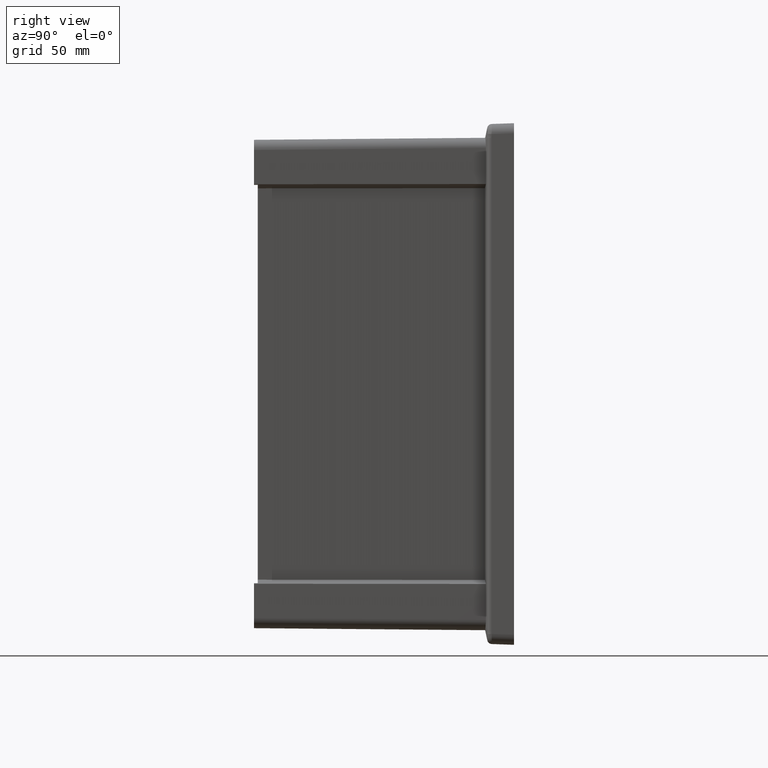
[diagram: clean part render]
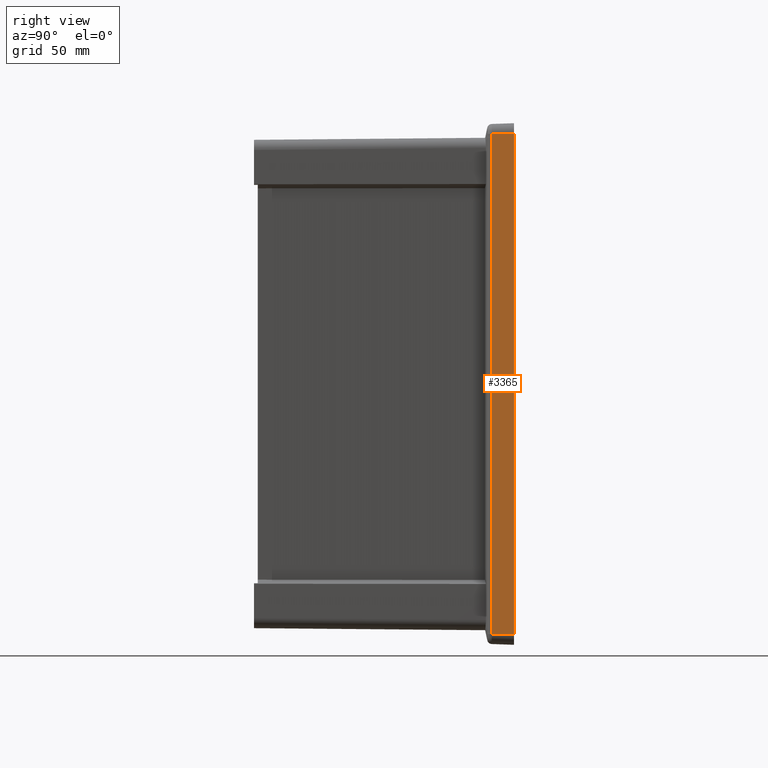
[diagram: same view with one face highlighted and labeled with its STEP entity id]
A machine part, right view. The second image highlights one B-rep face of the part: STEP entity #3365.
In plain terms, the highlighted planar face has unit normal (0.9994, -0.0349, 0).
Its self-contained STEP definition (entity closure, byte-faithful):
#53 = ORIENTED_EDGE ( 'NONE', *, *, #4488, .T. ) ;
#532 = CARTESIAN_POINT ( 'NONE',  ( 113.5792754149805000, -12.04797577896829500, -133.0909177678065600 ) ) ;
#966 = CARTESIAN_POINT ( 'NONE',  ( 113.9999999999999700, 0.0000000000000000000, 135.5033504513949900 ) ) ;
#1094 = AXIS2_PLACEMENT_3D ( 'NONE', #14364, #15781, #4257 ) ;
#1646 = ORIENTED_EDGE ( 'NONE', *, *, #13947, .T. ) ;
#1969 = CARTESIAN_POINT ( 'NONE',  ( 113.5792754149804600, -12.04797577896829500, 133.0909177678065000 ) ) ;
#2678 =( BOUNDED_CURVE ( )  B_SPLINE_CURVE ( 3, ( #5833, #4334, #13021, #14571 ),
 .UNSPECIFIED., .F., .F. ) 
 B_SPLINE_CURVE_WITH_KNOTS ( ( 4, 4 ),
 ( 1.854205547245615800, 1.913306334795867000 ),
 .UNSPECIFIED. ) 
 CURVE ( )  GEOMETRIC_REPRESENTATION_ITEM ( )  RATIONAL_B_SPLINE_CURVE ( ( 1.000000000000000000, 0.9997089459231631700, 0.9997089459231631700, 1.000000000000000000 ) ) 
 REPRESENTATION_ITEM ( '' )  );
#2766 = VECTOR ( 'NONE', #17583, 1000.000000000000000 ) ;
#2784 = PLANE ( 'NONE',  #1094 ) ;
#3191 = DIRECTION ( 'NONE',  ( 0.03487826274237469700, 0.9987827659587182900, -0.03487826274237469000 ) ) ;
#3365 = ADVANCED_FACE ( 'NONE', ( #7713 ), #2784, .T. ) ;
#3650 = EDGE_CURVE ( 'NONE', #7131, #15107, #2678, .T. ) ;
#3777 = CARTESIAN_POINT ( 'NONE',  ( 113.5807825647505600, -12.00481665641615900, 135.0841330161455600 ) ) ;
#4062 = EDGE_CURVE ( 'NONE', #7793, #8219, #14288, .T. ) ;
#4257 = DIRECTION ( 'NONE',  ( 0.03489949670250104600, 0.9993908270190956500, 0.0000000000000000000 ) ) ;
#4334 = CARTESIAN_POINT ( 'NONE',  ( 113.5797779445004200, -12.03358521635233700, 134.4169962001153100 ) ) ;
#4470 = LINE ( 'NONE', #11719, #9319 ) ;
#4488 = EDGE_CURVE ( 'NONE', #14501, #5998, #12446, .T. ) ;
#4499 = DIRECTION ( 'NONE',  ( -0.03487826274237468300, -0.9987827659587182900, -0.03487826274237469700 ) ) ;
#5226 = CARTESIAN_POINT ( 'NONE',  ( 113.5792754149804900, -12.04797577896829000, -133.7523976832278800 ) ) ;
#5354 = LINE ( 'NONE', #16261, #12863 ) ;
#5833 = CARTESIAN_POINT ( 'NONE',  ( 113.5807825647505600, -12.00481665641615900, 135.0841330161455600 ) ) ;
#5998 = VERTEX_POINT ( 'NONE', #966 ) ;
#6278 = ORIENTED_EDGE ( 'NONE', *, *, #18293, .T. ) ;
#6950 = EDGE_CURVE ( 'NONE', #15107, #7793, #10550, .T. ) ;
#7131 = VERTEX_POINT ( 'NONE', #3777 ) ;
#7307 = CARTESIAN_POINT ( 'NONE',  ( 114.0000000000000100, 0.0000000000000000000, -135.5033504513949400 ) ) ;
#7320 = CARTESIAN_POINT ( 'NONE',  ( 113.5792754149805000, -12.04797577896829500, -140.9999999999999700 ) ) ;
#7638 = ORIENTED_EDGE ( 'NONE', *, *, #3650, .T. ) ;
#7713 = FACE_OUTER_BOUND ( 'NONE', #12081, .T. ) ;
#7793 = VERTEX_POINT ( 'NONE', #532 ) ;
#8137 = VECTOR ( 'NONE', #10240, 1000.000000000000000 ) ;
#8219 = VERTEX_POINT ( 'NONE', #17427 ) ;
#9319 = VECTOR ( 'NONE', #4499, 1000.000000000000000 ) ;
#9400 = ORIENTED_EDGE ( 'NONE', *, *, #4062, .T. ) ;
#10240 = DIRECTION ( 'NONE',  ( -1.476360405086644800E-016, 0.0000000000000000000, 1.000000000000000000 ) ) ;
#10550 = LINE ( 'NONE', #7320, #2766 ) ;
#10762 = CARTESIAN_POINT ( 'NONE',  ( 113.5797779445004600, -12.03358521635233600, -134.4169962001153100 ) ) ;
#11719 = CARTESIAN_POINT ( 'NONE',  ( 113.6636355511010200, -9.632217554038684100, 135.1669860024960000 ) ) ;
#12081 = EDGE_LOOP ( 'NONE', ( #1646, #7638, #17093, #9400, #6278, #53 ) ) ;
#12416 = CARTESIAN_POINT ( 'NONE',  ( 113.5807825647506200, -12.00481665641615500, -135.0841330161455300 ) ) ;
#12446 = LINE ( 'NONE', #14911, #8137 ) ;
#12863 = VECTOR ( 'NONE', #3191, 1000.000000000000000 ) ;
#13021 = CARTESIAN_POINT ( 'NONE',  ( 113.5792754149804400, -12.04797577896829900, 133.7523976832278500 ) ) ;
#13947 = EDGE_CURVE ( 'NONE', #5998, #7131, #4470, .T. ) ;
#14288 =( BOUNDED_CURVE ( )  B_SPLINE_CURVE ( 3, ( #15263, #5226, #10762, #12416 ),
 .UNSPECIFIED., .F., .F. ) 
 B_SPLINE_CURVE_WITH_KNOTS ( ( 4, 4 ),
 ( 4.369878972383721900, 4.428979759933970000 ),
 .UNSPECIFIED. ) 
 CURVE ( )  GEOMETRIC_REPRESENTATION_ITEM ( )  RATIONAL_B_SPLINE_CURVE ( ( 1.000000000000000000, 0.9997089459231631700, 0.9997089459231631700, 1.000000000000000000 ) ) 
 REPRESENTATION_ITEM ( '' )  );
#14364 = CARTESIAN_POINT ( 'NONE',  ( 114.0000000000000100, 0.0000000000000000000, -140.9999999999999700 ) ) ;
#14501 = VERTEX_POINT ( 'NONE', #7307 ) ;
#14571 = CARTESIAN_POINT ( 'NONE',  ( 113.5792754149804600, -12.04797577896829500, 133.0909177678065000 ) ) ;
#14911 = CARTESIAN_POINT ( 'NONE',  ( 114.0000000000000100, 0.0000000000000000000, -140.9999999999999700 ) ) ;
#15107 = VERTEX_POINT ( 'NONE', #1969 ) ;
#15263 = CARTESIAN_POINT ( 'NONE',  ( 113.5792754149805000, -12.04797577896829500, -133.0909177678065600 ) ) ;
#15781 = DIRECTION ( 'NONE',  ( 0.9993908270190957600, -0.03489949670250105200, 1.475461046217789300E-016 ) ) ;
#16261 = CARTESIAN_POINT ( 'NONE',  ( 114.0066866368642300, 0.1914802268545351100, -135.5100370882591400 ) ) ;
#17093 = ORIENTED_EDGE ( 'NONE', *, *, #6950, .T. ) ;
#17427 = CARTESIAN_POINT ( 'NONE',  ( 113.5807825647506200, -12.00481665641615500, -135.0841330161455300 ) ) ;
#17583 = DIRECTION ( 'NONE',  ( 1.476321991264318700E-016, -1.100027945693337300E-019, -1.000000000000000000 ) ) ;
#18293 = EDGE_CURVE ( 'NONE', #8219, #14501, #5354, .T. ) ;